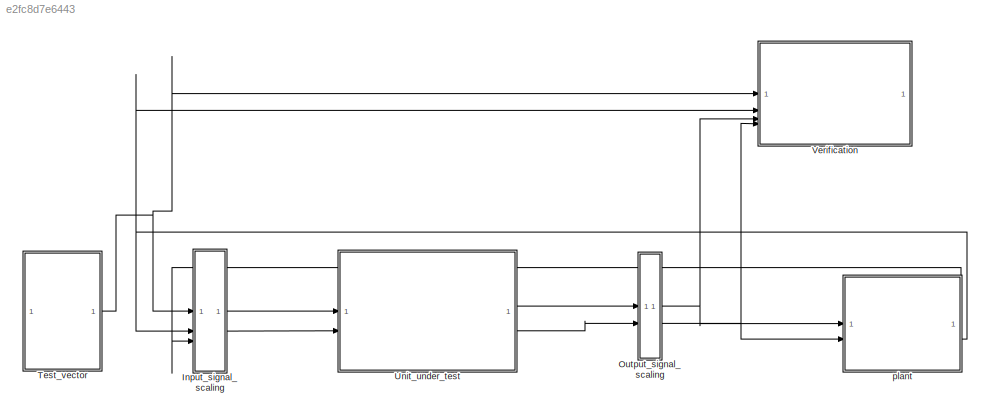
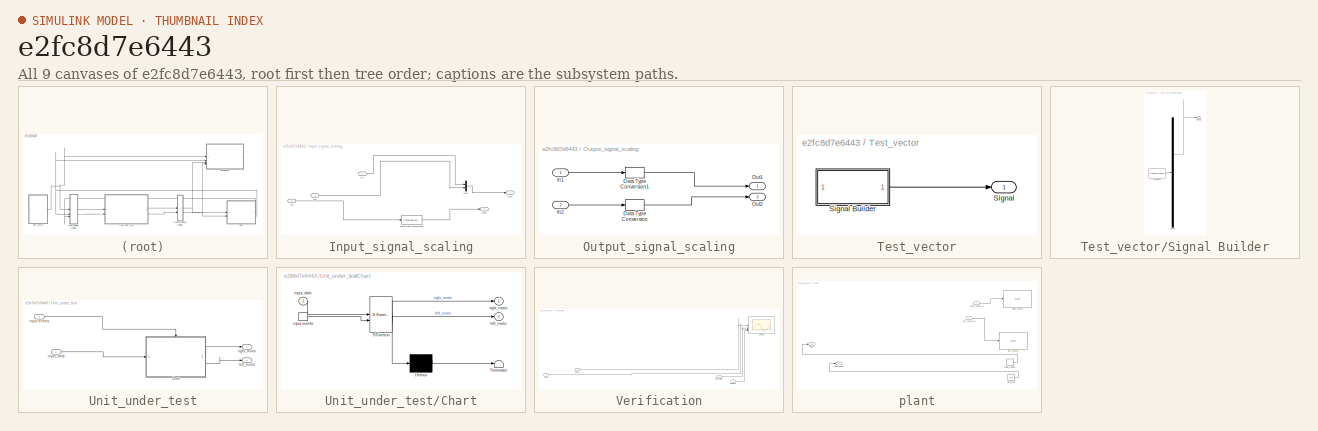
[diagram: thumbnail index - all 9 canvases of the model, root first then tree order]
MODEL slx_e2fc8d7e6443
KIND model
CONFIG AbsTol = auto
CONFIG EnableMultiTasking = off
CONFIG FixedStep = 0.05
CONFIG MaxStep = auto
CONFIG MinStep = auto
CONFIG RelTol = 1e-3
CONFIG SampleTimeConstraint = Unconstrained
CONFIG SolverName = FixedStepDiscrete
CONFIG StartTime = 0.0
CONFIG StopTime = 20
BLOCK [SubSystem] Input_signal_scaling
BLOCK [DataTypeConversion] Input_signal_scaling/Data Type Conversion1
  OutDataTypeStr = double
  RndMeth = Floor
  SaturateOnIntegerOverflow = off
BLOCK [Inport] Input_signal_scaling/In1
BLOCK [Inport] Input_signal_scaling/In2
  Port = 2
BLOCK [Inport] Input_signal_scaling/In3
  Port = 3
BLOCK [Mux] Input_signal_scaling/Mux
  DisplayOption = bar
  Inputs = 2
BLOCK [Outport] Input_signal_scaling/Out1
BLOCK [Outport] Input_signal_scaling/Out2
  Port = 2
BLOCK [SubSystem] Output_signal_scaling
BLOCK [DataTypeConversion] Output_signal_scaling/Data Type Conversion
  OutDataTypeStr = uint8
  RndMeth = Floor
  SaturateOnIntegerOverflow = off
BLOCK [DataTypeConversion] Output_signal_scaling/Data Type Conversion1
  OutDataTypeStr = uint8
  RndMeth = Floor
  SaturateOnIntegerOverflow = off
BLOCK [Inport] Output_signal_scaling/In1
BLOCK [Inport] Output_signal_scaling/In2
  Port = 2
BLOCK [Outport] Output_signal_scaling/Out1
BLOCK [Outport] Output_signal_scaling/Out2
  Port = 2
BLOCK [SubSystem] Test_vector
BLOCK [Outport] Test_vector/Signal
BLOCK [SubSystem] Test_vector/Signal Builder
  ClipboardFcn = sigbuilder_block('clipboard');
  CloseFcn = sigbuilder_block('close');
  ContinueFcn = sigbuilder_block('continue');
  CopyFcn = sigbuilder_block('copy');
  DeleteFcn = sigbuilder_block('delete');
  LoadFcn = sigbuilder_block('load');
  MaskHideContents = on
  ModelCloseFcn = sigbuilder_block('modelClose');
  NameChangeFcn = sigbuilder_block('namechange');
  OpenFcn = sigbuilder_block('open',[6 30 1012.5 447.75 ]);
  PauseFcn = sigbuilder_block('pause');
  PreSaveFcn = sigbuilder_block('preSave');
  StartFcn = sigbuilder_block('start');
  StopFcn = sigbuilder_block('stop');
  Tag = STV Subsys
BLOCK [Demux] Test_vector/Signal Builder/Demux
  DisplayOption = none
  Outputs = 1
  Tag = STV Demux
BLOCK [FromWorkspace] Test_vector/Signal Builder/FromWs
  Tag = STV FromWs
  VariableName = tuvar
BLOCK [Outport] Test_vector/Signal Builder/Signal 1
  Tag = STV Outport
BLOCK [SubSystem] Unit_under_test
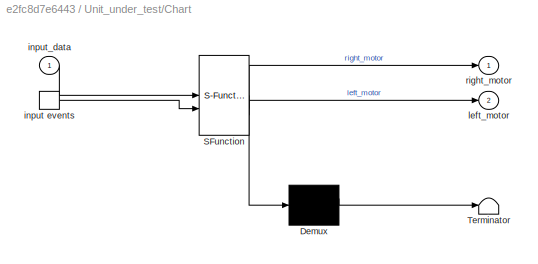
BLOCK [SubSystem] Unit_under_test/Chart
  ErrorFcn = Stateflow.Translate.translate
  PermitHierarchicalResolution = ExplicitOnly
  SFBlockType = Chart
  TreatAsAtomicUnit = on
BLOCK [Demux] Unit_under_test/Chart/ Demux 
  Outputs = 1
BLOCK [S-Function] Unit_under_test/Chart/ SFunction 
  EnableBusSupport = on
  FunctionName = sf_sfun
  PortCounts = [2 3]
  SFcnIsStateOwnerBlock = off
  SFunctionDeploymentMode = off
  Tag = Stateflow S-Function 1
BLOCK [Terminator] Unit_under_test/Chart/ Terminator 
BLOCK [TriggerPort] Unit_under_test/Chart/input events
  ShowOutputPort = on
  StatesWhenEnabling = held
  VariantControl = (inherit)
BLOCK [Inport] Unit_under_test/Chart/input_data
BLOCK [Outport] Unit_under_test/Chart/left_motor
  Port = 2
BLOCK [Outport] Unit_under_test/Chart/right_motor
BLOCK [Inport] Unit_under_test/input events
BLOCK [Inport] Unit_under_test/input_data
  Port = 2
BLOCK [Outport] Unit_under_test/left_motor
  Port = 2
BLOCK [Outport] Unit_under_test/right_motor
BLOCK [SubSystem] Verification
BLOCK [Inport] Verification/Pulse
  Port = 2
BLOCK [Scope] Verification/Scope
  Floating = off
  NumInputPorts = 4
  ScopeSpecificationString = Simulink.scopes.TimeScopeBlockCfg('CurrentConfiguration', extmgr.ConfigurationSet(extmgr.Configuration('Core','General UI',true),extmgr.Configuration('Core','Source UI',true),extmgr.Configuration('Sources','WiredSimulink',true),extmgr.Configuration('Visuals','Time Domain',true,'PlotType','Stem','SerializedDisplays',{struct('MinYLimReal','-0.13055','MaxYLimReal','1.12562','YLabelReal','','MinYLimMa...<+3325ch>
BLOCK [Inport] Verification/Signal
BLOCK [Inport] Verification/left_motor
  Port = 4
BLOCK [Inport] Verification/right_motor
  Port = 3
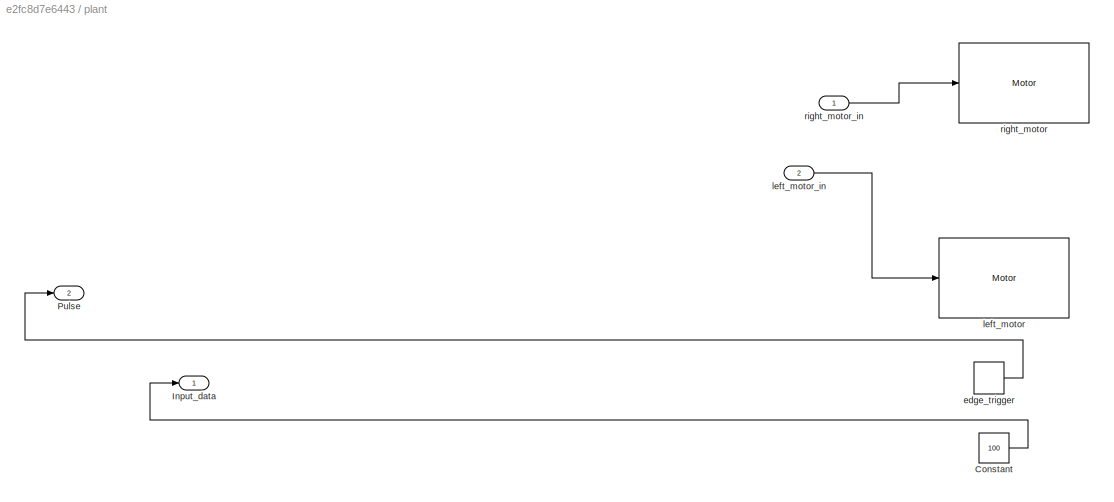
BLOCK [SubSystem] plant
BLOCK [Constant] plant/Constant
  OutDataTypeStr = uint8
  Value = 100
BLOCK [Outport] plant/Input_data
BLOCK [Outport] plant/Pulse
  Port = 2
BLOCK [DiscretePulseGenerator] plant/edge_trigger
  Period = 3
  PulseWidth = 2
  SampleTime = 0.05
BLOCK [Reference] plant/left_motor  REF=legoev3lib/Motor
  SourceBlock = legoev3lib/Motor
  SourceType = LEGO MINDSTORMS EV3 Motor
BLOCK [Inport] plant/left_motor_in
  Port = 2
BLOCK [Reference] plant/right_motor  REF=legoev3lib/Motor
  SourceBlock = legoev3lib/Motor
  SourceType = LEGO MINDSTORMS EV3 Motor
BLOCK [Inport] plant/right_motor_in
LINE Input_signal_scaling/Data Type Conversion1:1 -> Input_signal_scaling/Out2:1
LINE Input_signal_scaling/In1:1 -> Input_signal_scaling/Mux:1
LINE Input_signal_scaling/In2:1 -> Input_signal_scaling/Mux:2
LINE Input_signal_scaling/In3:1 -> Input_signal_scaling/Data Type Conversion1:1
LINE Input_signal_scaling/Mux:1 -> Input_signal_scaling/Out1:1
LINE Input_signal_scaling:1 -> Unit_under_test:1
LINE Input_signal_scaling:2 -> Unit_under_test:2
LINE Output_signal_scaling/Data Type Conversion1:1 -> Output_signal_scaling/Out1:1
LINE Output_signal_scaling/Data Type Conversion:1 -> Output_signal_scaling/Out2:1
LINE Output_signal_scaling/In1:1 -> Output_signal_scaling/Data Type Conversion1:1
LINE Output_signal_scaling/In2:1 -> Output_signal_scaling/Data Type Conversion:1
NET Output_signal_scaling:1 -> Verification:3, plant:1
NET Output_signal_scaling:2 -> Verification:4, plant:2
LINE Test_vector/Signal Builder:1 -> Test_vector/Signal:1
NET Test_vector:1 -> Input_signal_scaling:1, Verification:1
LINE Unit_under_test/Chart:1 -> Unit_under_test/right_motor:1
LINE Unit_under_test/Chart:2 -> Unit_under_test/left_motor:1
LINE Unit_under_test/input events:1 -> Unit_under_test/Chart:trigger
LINE Unit_under_test/input_data:1 -> Unit_under_test/Chart:1
LINE Unit_under_test:1 -> Output_signal_scaling:1
LINE Unit_under_test:2 -> Output_signal_scaling:2
LINE Verification/Pulse:1 -> Verification/Scope:2
LINE Verification/Signal:1 -> Verification/Scope:1
LINE Verification/left_motor:1 -> Verification/Scope:4
LINE Verification/right_motor:1 -> Verification/Scope:3
LINE plant/Constant:1 -> plant/Input_data:1
LINE plant/edge_trigger:1 -> plant/Pulse:1
LINE plant/left_motor_in:1 -> plant/left_motor:1
LINE plant/right_motor_in:1 -> plant/right_motor:1
LINE plant:1 -> Input_signal_scaling:3
NET plant:2 -> Input_signal_scaling:2, Verification:2
note: NET lines group one-source signal fan-out (src -> all destinations, sorted); 1:1 wires keep LINE
CHART Unit_under_test/Chart states=2 transitions=9
  STATE_LABEL 'On_pb\nright_motor = input_data;\nleft_motor = input_data;'
  STATE_LABEL 'Off_pb\nright_motor=0;\nleft_motor=0;\nentry:\nc=0;\n'
CHART  states=0 transitions=0
